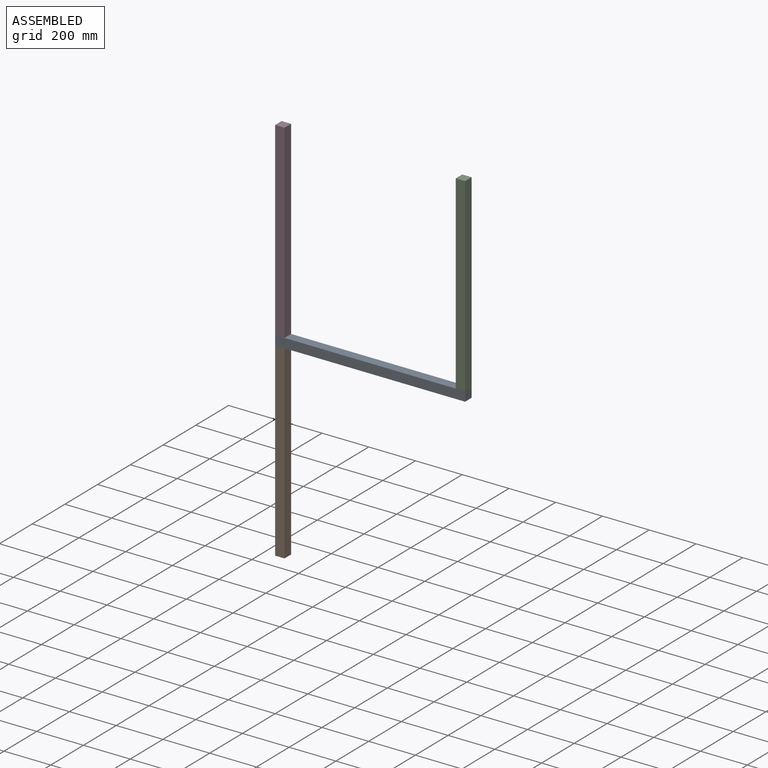
[diagram: assembled view]
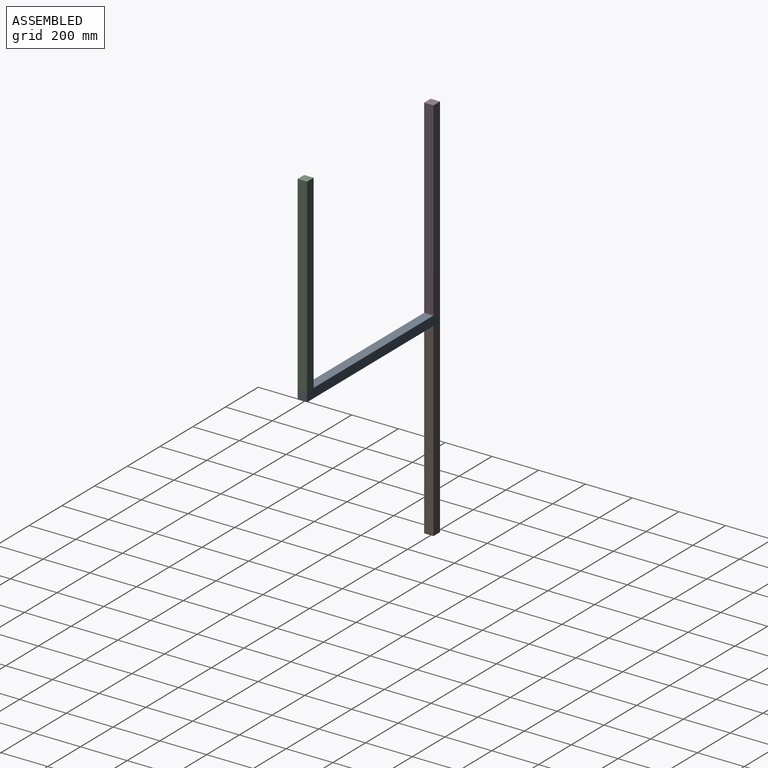
[diagram: assembled view, second angle]
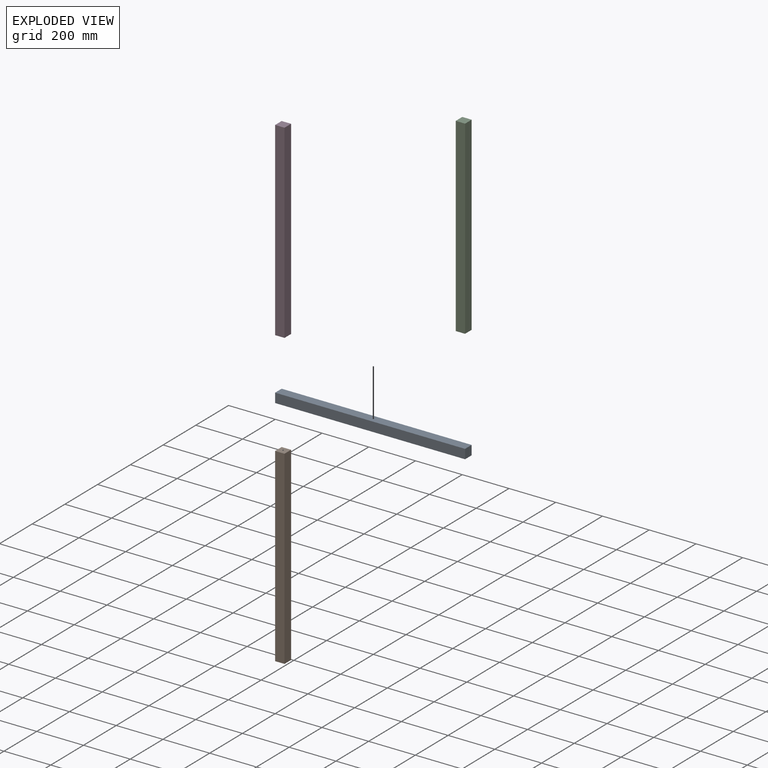
[diagram: exploded view]
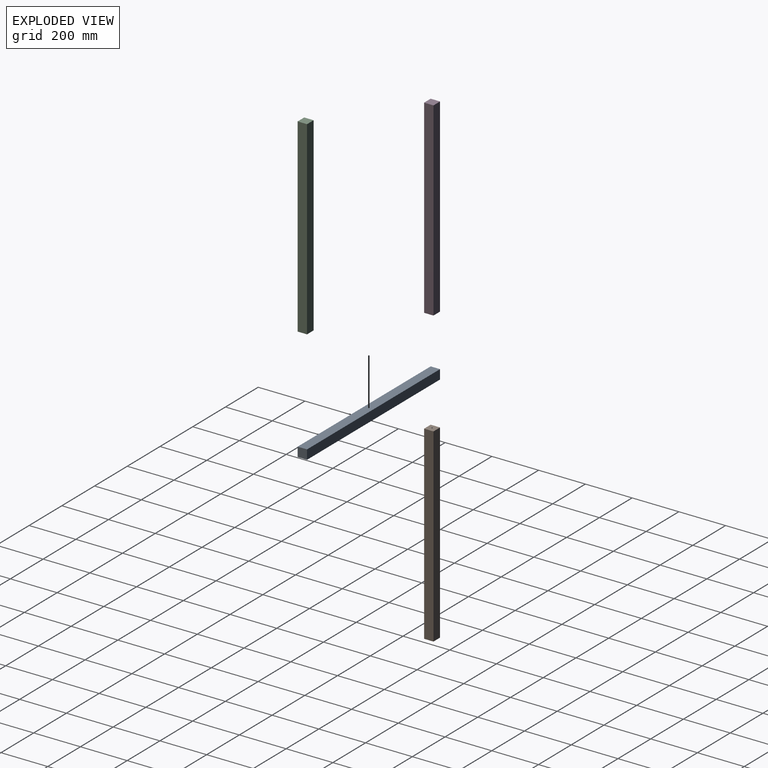
[diagram: exploded view, second angle]
ASSEMBLY  parts=4 mates=3
PART A: 6 faces, bbox 40.1x40.1x812.8 mm
  f0: plane 812.8x40.13mm, normal (0,-1,0), area 32619.3mm2, adj f1,f3,f4,f5
  f1: plane 812.8x40.13mm, normal (1,0,0), area 32619.3mm2, adj f0,f2,f4,f5
  f2: plane 812.8x40.13mm, normal (0,1,0), area 32619.3mm2, adj f1,f3,f4,f5
  f3: plane 812.8x40.13mm, normal (-1,0,0), area 32619.3mm2, adj f0,f2,f4,f5
  f4: plane 40.13x40.13mm, normal (0,0,-1), area 1610.6mm2, adj f0,f1,f2,f3
  f5: plane 40.13x40.13mm, normal (0,0,1), area 1610.6mm2, adj f0,f1,f2,f3
PART B: same geometry as A
PART C: same geometry as A
PART D: same geometry as A
PLACE A rot(axis=(0,-1,0),90deg) t=(-215.47,-92.34,-17.66)mm
PLACE B t=(-175.34,-92.34,-57.79)mm
PLACE C rot(axis=(0.71,0.71,0),180deg) t=(557.2,-52.21,-17.66)mm
PLACE D rot(axis=(1,0,0),180deg) t=(-175.34,-52.21,-17.66)mm
MATE fastened C.f5 <-> A.f1  axis (0,0,-1) through (597.33,-92.34,-17.66)mm
MATE fastened A.f0 <-> B.f0  axis (0,1,0) through (-215.47,-92.34,-57.79)mm
MATE fastened D.f5 <-> A.f1  axis (0,0,-1) through (-215.47,-92.34,-17.66)mm
